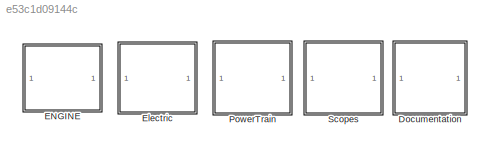
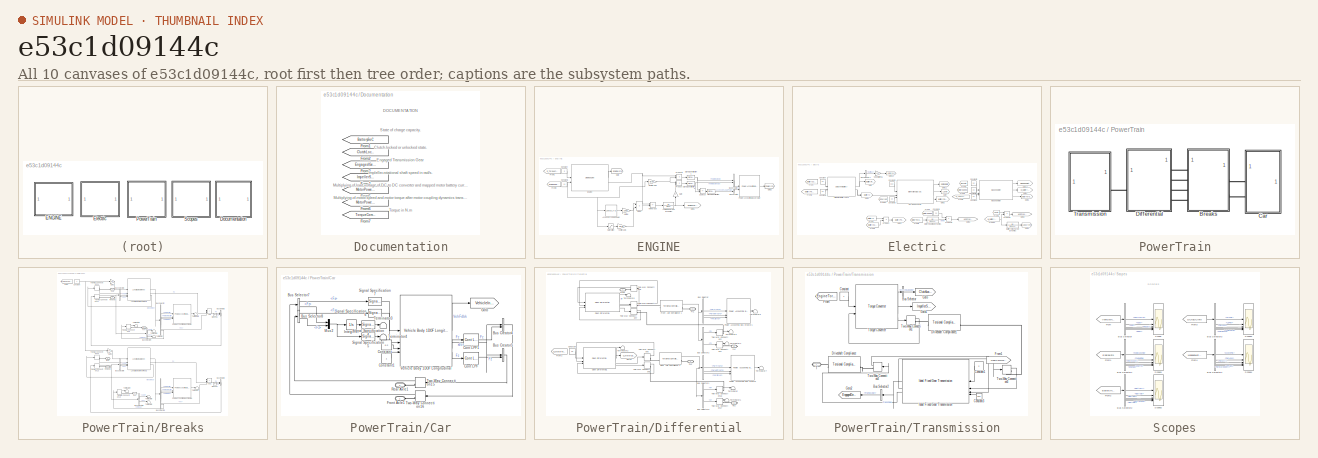
[diagram: thumbnail index - all 10 canvases of the model, root first then tree order]
MODEL slx_e53c1d09144c
KIND model
CONFIG AbsTol = auto
CONFIG EnableMultiTasking = off
CONFIG FixedStep = auto
CONFIG MaxStep = auto
CONFIG MinStep = auto
CONFIG RelTol = 1e-3
CONFIG SampleTimeConstraint = Unconstrained
CONFIG SolverName = VariableStepAuto
CONFIG StartTime = 0.0
CONFIG StopTime = 10.0
WORKSPACE source: mxarray member
WORKSPACE Aeff: Simulink.Parameter (value not decoded)
WORKSPACE Af: Simulink.Parameter (value not decoded)
WORKSPACE BattCapInit: Simulink.Parameter (value not decoded)
WORKSPACE BattChargeMax: Simulink.Parameter (value not decoded)
WORKSPACE BattTempBp: Simulink.Parameter (value not decoded)
WORKSPACE Bx: Simulink.Parameter (value not decoded)
WORKSPACE CapLUTBp: Simulink.Parameter (value not decoded)
WORKSPACE CapSOCBp: Simulink.Parameter (value not decoded)
WORKSPACE CatLightOffTime: Simulink.Parameter (value not decoded)
WORKSPACE Cd: Simulink.Parameter (value not decoded)
WORKSPACE Cl: Simulink.Parameter (value not decoded)
WORKSPACE Cpm: Simulink.Parameter (value not decoded)
WORKSPACE Cps: Simulink.Parameter (value not decoded)
WORKSPACE CrankSpeed: Simulink.Parameter (value not decoded)
WORKSPACE Cx: Simulink.Parameter (value not decoded)
WORKSPACE Dx: Simulink.Parameter (value not decoded)
WORKSPACE Em: Simulink.Parameter (value not decoded)
WORKSPACE EngRevLim: Simulink.Parameter (value not decoded)
WORKSPACE EngStopStartEnable: Simulink.Parameter (value not decoded)
WORKSPACE EngStopTime: Simulink.Parameter (value not decoded)
WORKSPACE Ex: Simulink.Parameter (value not decoded)
WORKSPACE FZMAX: Simulink.Parameter (value not decoded)
WORKSPACE FZMIN: Simulink.Parameter (value not decoded)
WORKSPACE Fc: Simulink.Parameter (value not decoded)
WORKSPACE FsbF: Simulink.Parameter (value not decoded)
WORKSPACE FsbR: Simulink.Parameter (value not decoded)
WORKSPACE FskF: Simulink.Parameter (value not decoded)
WORKSPACE FskR: Simulink.Parameter (value not decoded)
WORKSPACE G: Simulink.Parameter (value not decoded)
WORKSPACE G_o: Simulink.Parameter (value not decoded)
WORKSPACE Iyy: Simulink.Parameter (value not decoded)
WORKSPACE Iyy_Whl: Simulink.Parameter (value not decoded)
WORKSPACE J: Simulink.Parameter (value not decoded)
WORKSPACE J1: Simulink.Parameter (value not decoded)
WORKSPACE J2: Simulink.Parameter (value not decoded)
WORKSPACE Jd: Simulink.Parameter (value not decoded)
WORKSPACE Ji: Simulink.Parameter (value not decoded)
WORKSPACE Jin: Simulink.Parameter (value not decoded)
WORKSPACE Jin_Cltch: Simulink.Parameter (value not decoded)
WORKSPACE Jin_Cltch2: Simulink.Parameter (value not decoded)
WORKSPACE Jout: Simulink.Parameter (value not decoded)
WORKSPACE Jout_Cltch: Simulink.Parameter (value not decoded)
WORKSPACE Jout_Cltch2: Simulink.Parameter (value not decoded)
WORKSPACE Jt: Simulink.Parameter (value not decoded)
WORKSPACE Jw1: Simulink.Parameter (value not decoded)
WORKSPACE Jw2: Simulink.Parameter (value not decoded)
WORKSPACE K_c: Simulink.Parameter (value not decoded)
WORKSPACE Lrel: Simulink.Parameter (value not decoded)
WORKSPACE Mass: Simulink.Parameter (value not decoded)
WORKSPACE N: Simulink.Parameter (value not decoded)
WORKSPACE NCyl: Simulink.Parameter (value not decoded)
WORKSPACE NF: Simulink.Parameter (value not decoded)
WORKSPACE NR: Simulink.Parameter (value not decoded)
WORKSPACE N_P4: Simulink.Parameter (value not decoded)
WORKSPACE N_idle: Simulink.Parameter (value not decoded)
WORKSPACE Ndiff: Simulink.Parameter (value not decoded)
WORKSPACE Ndiff_P4: Simulink.Parameter (value not decoded)
WORKSPACE Ndisk: Simulink.Parameter (value not decoded)
WORKSPACE Ndisks: Simulink.Parameter (value not decoded)
WORKSPACE Np: Simulink.Parameter (value not decoded)
WORKSPACE Ns: Simulink.Parameter (value not decoded)
WORKSPACE Pabs: Simulink.Parameter (value not decoded)
WORKSPACE Plimit: Simulink.Parameter (value not decoded)
WORKSPACE Press: Simulink.Parameter (value not decoded)
WORKSPACE Pstd: Simulink.Parameter (value not decoded)
WORKSPACE RInt: Simulink.Parameter (value not decoded)
WORKSPACE Rair: Simulink.Parameter (value not decoded)
WORKSPACE Re: Simulink.Parameter (value not decoded)
WORKSPACE Reff: Simulink.Parameter (value not decoded)
WORKSPACE Reff_LSD: Simulink.Parameter (value not decoded)
WORKSPACE Rm: Simulink.Parameter (value not decoded)
WORKSPACE Sinj: Simulink.Parameter (value not decoded)
WORKSPACE T: Simulink.Parameter (value not decoded)
WORKSPACE T_eff_bp: Simulink.Parameter (value not decoded)
WORKSPACE T_t: Simulink.Parameter (value not decoded)
WORKSPACE Tc: Simulink.Parameter (value not decoded)
WORKSPACE Temp_bpts: Simulink.Parameter (value not decoded)
WORKSPACE Trq_bpts: Simulink.Parameter (value not decoded)
WORKSPACE Ts: Simulink.Parameter (value not decoded)
WORKSPACE Tstd: Simulink.Parameter (value not decoded)
WORKSPACE UNLOADED_RADIUS: Simulink.Parameter (value not decoded)
WORKSPACE VXLOW: Simulink.Parameter (value not decoded)
WORKSPACE Vd: Simulink.Parameter (value not decoded)
WORKSPACE Vinit: Simulink.Parameter (value not decoded)
WORKSPACE aMy: Simulink.Parameter (value not decoded)
WORKSPACE a_CG: Simulink.Parameter (value not decoded)
WORKSPACE afr_stoich: Simulink.Parameter (value not decoded)
WORKSPACE alphaMy: Simulink.Parameter (value not decoded)
WORKSPACE b: Simulink.Parameter (value not decoded)
WORKSPACE b1: Simulink.Parameter (value not decoded)
WORKSPACE b1_g: Simulink.Parameter (value not decoded)
WORKSPACE b2: Simulink.Parameter (value not decoded)
WORKSPACE b2_g: Simulink.Parameter (value not decoded)
WORKSPACE bMy: Simulink.Parameter (value not decoded)
WORKSPACE b_CG: Simulink.Parameter (value not decoded)
WORKSPACE b_J: Simulink.Parameter (value not decoded)
WORKSPACE bd: Simulink.Parameter (value not decoded)
WORKSPACE betaMy: Simulink.Parameter (value not decoded)
WORKSPACE bi: Simulink.Parameter (value not decoded)
WORKSPACE bin: Simulink.Parameter (value not decoded)
WORKSPACE bin_Cltch: Simulink.Parameter (value not decoded)
WORKSPACE bout: Simulink.Parameter (value not decoded)
WORKSPACE bout_Cltch: Simulink.Parameter (value not decoded)
WORKSPACE br: Simulink.Parameter (value not decoded)
WORKSPACE bt: Simulink.Parameter (value not decoded)
WORKSPACE bw1: Simulink.Parameter (value not decoded)
WORKSPACE bw2: Simulink.Parameter (value not decoded)
WORKSPACE cMy: Simulink.Parameter (value not decoded)
WORKSPACE calEngVar: object (value not decoded)
WORKSPACE disk_abore: Simulink.Parameter (value not decoded)
WORKSPACE domega_o: Simulink.Parameter (value not decoded)
WORKSPACE dw: Simulink.Parameter (value not decoded)
WORKSPACE dzdotsF: Simulink.Parameter (value not decoded)
WORKSPACE dzdotsR: Simulink.Parameter (value not decoded)
WORKSPACE dzsF: Simulink.Parameter (value not decoded)
WORKSPACE dzsR: Simulink.Parameter (value not decoded)
WORKSPACE eff: Simulink.Parameter (value not decoded)
WORKSPACE efficiency_table: Simulink.Parameter (value not decoded)
WORKSPACE eta: Simulink.Parameter (value not decoded)
WORKSPACE eta_diff: Simulink.Parameter (value not decoded)
WORKSPACE eta_tbl: Simulink.Parameter (value not decoded)
WORKSPACE f_cp_ld_bpt: Simulink.Parameter (value not decoded)
WORKSPACE f_cp_n_bpt: Simulink.Parameter (value not decoded)
WORKSPACE f_del_sa_bpt: Simulink.Parameter (value not decoded)
WORKSPACE f_ecp: Simulink.Parameter (value not decoded)
WORKSPACE f_egr_areapct_cmd: Simulink.Parameter (value not decoded)
WORKSPACE f_egr_areapct_nrmlzdflow_bpt: Simulink.Parameter (value not decoded)
WORKSPACE f_egr_areapct_pr_bpt: Simulink.Parameter (value not decoded)
WORKSPACE f_egr_max_stdflow: Simulink.Parameter (value not decoded)
WORKSPACE f_egr_stdflow: Simulink.Parameter (value not decoded)
WORKSPACE f_egr_stdflow_egrap_bpt: Simulink.Parameter (value not decoded)
WORKSPACE f_egr_stdflow_pr_bpt: Simulink.Parameter (value not decoded)
WORKSPACE f_egrpct_cmd: Simulink.Parameter (value not decoded)
WORKSPACE f_egrpct_ld_bpt: Simulink.Parameter (value not decoded)
WORKSPACE f_egrpct_n_bpt: Simulink.Parameter (value not decoded)
WORKSPACE f_fric_temp_bpt: Simulink.Parameter (value not decoded)
WORKSPACE f_fric_temp_mod: Simulink.Parameter (value not decoded)
WORKSPACE f_icp: Simulink.Parameter (value not decoded)
WORKSPACE f_intksys_stdflow_bpt: Simulink.Parameter (value not decoded)
WORKSPACE f_intksys_stdflow_pr: Simulink.Parameter (value not decoded)
WORKSPACE f_lamcmd: Simulink.Parameter (value not decoded)
WORKSPACE f_lamcmd_ld_bpt: Simulink.Parameter (value not decoded)
WORKSPACE f_lamcmd_n_bpt: Simulink.Parameter (value not decoded)
WORKSPACE f_lcmd: Simulink.Parameter (value not decoded)
WORKSPACE f_lcmd_n_bpt: Simulink.Parameter (value not decoded)
WORKSPACE f_lcmd_tq_bpt: Simulink.Parameter (value not decoded)
WORKSPACE f_m_lam: Simulink.Parameter (value not decoded)
WORKSPACE f_m_lam_bpt: Simulink.Parameter (value not decoded)
WORKSPACE f_m_sa: Simulink.Parameter (value not decoded)
WORKSPACE f_mdot_air_corr: Simulink.Parameter (value not decoded)
WORKSPACE f_mdot_air_corr_ld_bpt: Simulink.Parameter (value not decoded)
WORKSPACE f_mdot_air_n_bpt: Simulink.Parameter (value not decoded)
WORKSPACE f_mdot_intk: Simulink.Parameter (value not decoded)
WORKSPACE f_mdot_intk_ecp_bpt: Simulink.Parameter (value not decoded)
WORKSPACE f_mdot_trpd_bpt: Simulink.Parameter (value not decoded)
WORKSPACE f_nv: Simulink.Parameter (value not decoded)
WORKSPACE f_nv_n_bpt: Simulink.Parameter (value not decoded)
WORKSPACE f_nv_prs_bpt: Simulink.Parameter (value not decoded)
WORKSPACE f_sa: Simulink.Parameter (value not decoded)
WORKSPACE f_sa_ld_bpt: Simulink.Parameter (value not decoded)
WORKSPACE f_sa_n_bpt: Simulink.Parameter (value not decoded)
WORKSPACE f_sa_opt: Simulink.Parameter (value not decoded)
WORKSPACE f_startup_ect_bpt: Simulink.Parameter (value not decoded)
WORKSPACE f_startup_lambda_delta: Simulink.Parameter (value not decoded)
WORKSPACE f_startup_lambda_delta_timecnst: Simulink.Parameter (value not decoded)
WORKSPACE f_t_exh: Simulink.Parameter (value not decoded)
WORKSPACE f_t_exh_l_bpt: Simulink.Parameter (value not decoded)
WORKSPACE f_t_exh_n_bpt: Simulink.Parameter (value not decoded)
WORKSPACE f_tap: Simulink.Parameter (value not decoded)
WORKSPACE f_tap_ld_bpt: Simulink.Parameter (value not decoded)
WORKSPACE f_tap_n_bpt: Simulink.Parameter (value not decoded)
WORKSPACE f_tm_corr: Simulink.Parameter (value not decoded)
WORKSPACE f_tm_corr_n_bpt: Simulink.Parameter (value not decoded)
WORKSPACE f_tm_corr_nd_bpt: Simulink.Parameter (value not decoded)
WORKSPACE f_tpp: Simulink.Parameter (value not decoded)
WORKSPACE f_tpp_tap_bpt: Simulink.Parameter (value not decoded)
WORKSPACE f_tq_fric: Simulink.Parameter (value not decoded)
WORKSPACE f_tq_inr: Simulink.Parameter (value not decoded)
WORKSPACE f_tq_inr_l_bpt: Simulink.Parameter (value not decoded)
WORKSPACE f_tq_inr_n_bpt: Simulink.Parameter (value not decoded)
WORKSPACE f_tq_nl: Simulink.Parameter (value not decoded)
WORKSPACE f_tq_nl_l_bpt: Simulink.Parameter (value not decoded)
WORKSPACE f_tq_nl_n_bpt: Simulink.Parameter (value not decoded)
WORKSPACE f_tq_pump: Simulink.Parameter (value not decoded)
WORKSPACE f_vivc: Simulink.Parameter (value not decoded)
WORKSPACE f_vivc_icp_bpt: Simulink.Parameter (value not decoded)
WORKSPACE f_wap: Simulink.Parameter (value not decoded)
WORKSPACE f_wap_ld_bpt: Simulink.Parameter (value not decoded)
WORKSPACE f_wap_n_bpt: Simulink.Parameter (value not decoded)
WORKSPACE g: Simulink.Parameter (value not decoded)
WORKSPACE grEff: Simulink.Parameter (value not decoded)
WORKSPACE h: Simulink.Parameter (value not decoded)
WORKSPACE k: Simulink.Parameter (value not decoded)
WORKSPACE k1: Simulink.Parameter (value not decoded)
WORKSPACE k2: Simulink.Parameter (value not decoded)
WORKSPACE kappamax: Simulink.Parameter (value not decoded)
WORKSPACE lam_x: Simulink.Parameter (value not decoded)
WORKSPACE mu_kinetic: Simulink.Parameter (value not decoded)
WORKSPACE mu_static: Simulink.Parameter (value not decoded)
WORKSPACE muc: Simulink.Parameter (value not decoded)
WORKSPACE muk: Simulink.Parameter (value not decoded)
WORKSPACE mus: Simulink.Parameter (value not decoded)
WORKSPACE num_pads: Simulink.Parameter (value not decoded)
WORKSPACE omega1_c: Simulink.Parameter (value not decoded)
WORKSPACE omega2_c: Simulink.Parameter (value not decoded)
WORKSPACE omega_bpts: Simulink.Parameter (value not decoded)
WORKSPACE omega_c: Simulink.Parameter (value not decoded)
WORKSPACE omega_o: Simulink.Parameter (value not decoded)
WORKSPACE omega_o_J: Simulink.Parameter (value not decoded)
WORKSPACE omegai_o: Simulink.Parameter (value not decoded)
WORKSPACE omegain_o: Simulink.Parameter (value not decoded)
WORKSPACE omegal: Simulink.Parameter (value not decoded)
WORKSPACE omegao: Simulink.Parameter (value not decoded)
WORKSPACE omegaout_o: Simulink.Parameter (value not decoded)
WORKSPACE omegat_o: Simulink.Parameter (value not decoded)
WORKSPACE omegau: Simulink.Parameter (value not decoded)
WORKSPACE omegaw1o: Simulink.Parameter (value not decoded)
WORKSPACE omegaw2o: Simulink.Parameter (value not decoded)
WORKSPACE phi: Simulink.Parameter (value not decoded)
WORKSPACE philu: Simulink.Parameter (value not decoded)
WORKSPACE power_max: Simulink.Parameter (value not decoded)
WORKSPACE press: Simulink.Parameter (value not decoded)
WORKSPACE psi: Simulink.Parameter (value not decoded)
WORKSPACE q_o: Simulink.Parameter (value not decoded)
WORKSPACE tauC: Simulink.Parameter (value not decoded)
WORKSPACE tauC_1: Simulink.Parameter (value not decoded)
WORKSPACE tauC_LSD: Simulink.Parameter (value not decoded)
WORKSPACE tauTC: Simulink.Parameter (value not decoded)
WORKSPACE tau_egr: Simulink.Parameter (value not decoded)
WORKSPACE tau_s: Simulink.Parameter (value not decoded)
WORKSPACE tc: Simulink.Parameter (value not decoded)
WORKSPACE theta_o: Simulink.Parameter (value not decoded)
WORKSPACE theta_o_Veh: Simulink.Parameter (value not decoded)
WORKSPACE torque_max: Simulink.Parameter (value not decoded)
WORKSPACE ts: Simulink.Parameter (value not decoded)
WORKSPACE w1_o: Simulink.Parameter (value not decoded)
WORKSPACE w_eff_bp: Simulink.Parameter (value not decoded)
WORKSPACE wc: Simulink.Parameter (value not decoded)
WORKSPACE win_o: Simulink.Parameter (value not decoded)
WORKSPACE wout_o: Simulink.Parameter (value not decoded)
WORKSPACE x_o: Simulink.Parameter (value not decoded)
WORKSPACE xdot_o: Simulink.Parameter (value not decoded)
WORKSPACE z_o: Simulink.Parameter (value not decoded)
WORKSPACE zdot_o: Simulink.Parameter (value not decoded)
WORKSPACE zeta: Simulink.Parameter (value not decoded)
BLOCK [SubSystem] Documentation
BLOCK [From] Documentation/From1
  GotoTag = BatterySoC
  TagVisibility = global
BLOCK [From] Documentation/From2
  GotoTag = ClutchLocked
  TagVisibility = global
BLOCK [From] Documentation/From3
  GotoTag = EngagedGear
  TagVisibility = global
BLOCK [From] Documentation/From4
  GotoTag = ImpellerSpeed
  TagVisibility = global
BLOCK [From] Documentation/From5
  GotoTag = MotorPowerElectrical
  TagVisibility = global
BLOCK [From] Documentation/From6
  GotoTag = MotorPowerMechanical
  TagVisibility = global
BLOCK [From] Documentation/From7
  GotoTag = TorqueCommand
  TagVisibility = global
BLOCK [SubSystem] ENGINE
BLOCK [Lookup_n-D] ENGINE/Accessory Load Power
  BreakpointsForDimension1 = [300 750]
  ExtrapMethod = Clip
  InputPortMap = u0
  InternalRulePriority = Speed
  LookupTableObject = ''
  NumberOfTableDimensions = 1
  RndMeth = Simplest
  Table = [0 0]
BLOCK [BusCreator] ENGINE/Bus Creator
  DisplayOption = bar
  InheritFromInputs = on
  Inputs = 1
BLOCK [BusCreator] ENGINE/Bus Creator1
  DisplayOption = bar
  InheritFromInputs = on
  Inputs = 2
BLOCK [Constant] ENGINE/Constant
  Value = 5
BLOCK [Constant] ENGINE/Constant1
  Value = 10
BLOCK [Product] ENGINE/Divide
  Inputs = */
BLOCK [Reference] ENGINE/Engine  REF=autolibsharedmappedengines/Simple Engine
  LibrarySourceBlock = autolibenginesystems/Simple Engine
  SourceBlock = autolibsharedmappedengines/Simple Engine
  SourceType = Simple Engine
BLOCK [From] ENGINE/From1
  Commented = on
  GotoTag = E_TorqueCommand
BLOCK [From] ENGINE/From2
  Commented = on
  GotoTag = EngineSpeed
BLOCK [Gain] ENGINE/Gain
  Gain = -1
  NameLocation = right
BLOCK [Goto] ENGINE/Goto
  GotoTag = EngineInfo
  TagVisibility = global
BLOCK [Goto] ENGINE/Goto1
  GotoTag = EngineTorqueOut
  TagVisibility = global
BLOCK [Goto] ENGINE/Goto2
  GotoTag = PowerInfo
  TagVisibility = global
BLOCK [Gain] ENGINE/Kw to w
  Gain = 1000
BLOCK [TransferFcn] ENGINE/Lumped Torque Dynamics
  Denominator = [0.2 1]
BLOCK [Sum] ENGINE/Net Torque
  IconShape = rectangular
  Inputs = +-
BLOCK [Reference] ENGINE/Power Accounting Bus Creator  REF=autolibpowerinfoutils/Power Accounting Bus Creator
  SourceBlock = autolibpowerinfoutils/Power Accounting Bus Creator
  SourceType = Power Accounting Bus Creator
BLOCK [Product] ENGINE/Product
BLOCK [Product] ENGINE/Product1
BLOCK [Gain] ENGINE/RPM to rad//s
  Gain = pi/30
BLOCK [Saturate] ENGINE/Saturation
  LowerLimit = 300
  UpperLimit = Inf
  ZeroCross = off
BLOCK [SignalSpecification] ENGINE/Signal Specification
  Unit = W
BLOCK [SignalSpecification] ENGINE/Signal Specification1
  Unit = W
BLOCK [SignalSpecification] ENGINE/Signal Specification2
  Unit = W
BLOCK [Sum] ENGINE/Subtract
  IconShape = rectangular
  Inputs = --
BLOCK [Gain] ENGINE/rpm to rad//s
  Gain = pi/30
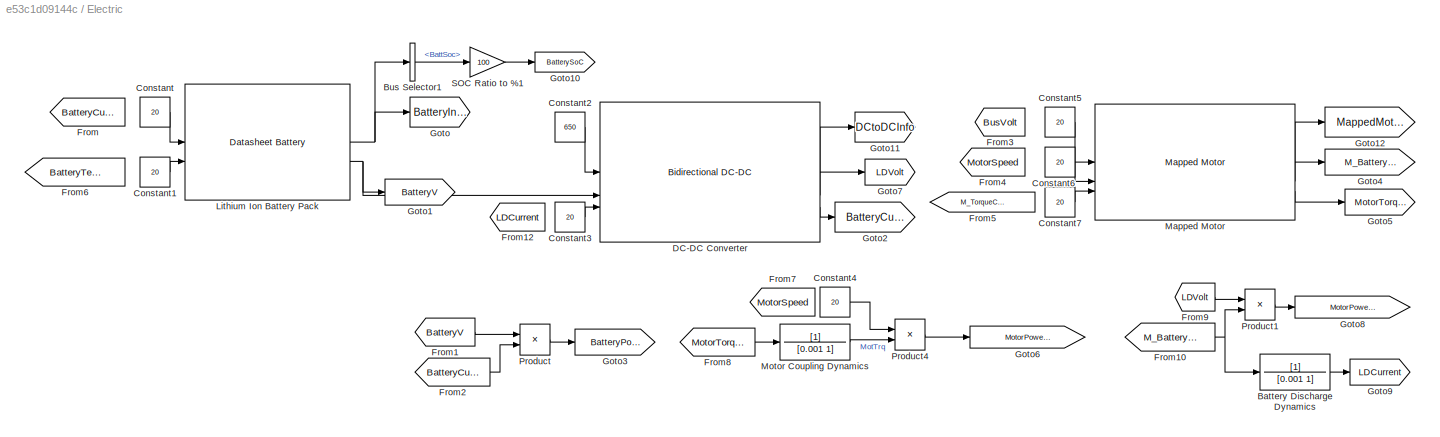
BLOCK [SubSystem] Electric
BLOCK [TransferFcn] Electric/Battery Discharge Dynamics
  Denominator = [0.001 1]
BLOCK [BusSelector] Electric/Bus Selector1
  OutputSignals = BattSoc
BLOCK [Constant] Electric/Constant
  Value = 20
BLOCK [Constant] Electric/Constant1
  Value = 20
BLOCK [Constant] Electric/Constant2
  Value = 650
BLOCK [Constant] Electric/Constant3
  Value = 20
BLOCK [Constant] Electric/Constant4
  Value = 20
BLOCK [Constant] Electric/Constant5
  Value = 20
BLOCK [Constant] Electric/Constant6
  Value = 20
BLOCK [Constant] Electric/Constant7
  Value = 20
BLOCK [Reference] Electric/DC-DC Converter  REF=autolibdcdc/Bidirectional DC-DC
  SourceBlock = autolibdcdc/Bidirectional DC-DC
  SourceType = DcToDcConverter
BLOCK [From] Electric/From
  Commented = on
  GotoTag = BatteryCurrent
  TagVisibility = global
BLOCK [From] Electric/From1
  GotoTag = BatteryV
BLOCK [From] Electric/From10
  GotoTag = M_BatteryCurrent
  TagVisibility = global
BLOCK [From] Electric/From12
  Commented = on
  GotoTag = LDCurrent
  TagVisibility = global
BLOCK [From] Electric/From2
  GotoTag = BatteryCurrent
  TagVisibility = global
BLOCK [From] Electric/From3
  Commented = on
  GotoTag = BusVolt
BLOCK [From] Electric/From4
  Commented = on
  GotoTag = MotorSpeed
BLOCK [From] Electric/From5
  Commented = on
  GotoTag = M_TorqueCommand
BLOCK [From] Electric/From6
  Commented = on
  GotoTag = BatteryTemperature
BLOCK [From] Electric/From7
  Commented = on
  GotoTag = MotorSpeed
BLOCK [From] Electric/From8
  GotoTag = MotorTorque
  TagVisibility = global
BLOCK [From] Electric/From9
  GotoTag = LDVolt
  TagVisibility = global
BLOCK [Goto] Electric/Goto
  GotoTag = BatteryInfo
  TagVisibility = global
BLOCK [Goto] Electric/Goto1
  GotoTag = BatteryV
BLOCK [Goto] Electric/Goto10
  GotoTag = BatterySoC
  TagVisibility = global
BLOCK [Goto] Electric/Goto11
  GotoTag = DCtoDCInfo
  TagVisibility = global
BLOCK [Goto] Electric/Goto12
  GotoTag = MappedMotorInfo
  TagVisibility = global
BLOCK [Goto] Electric/Goto2
  GotoTag = BatteryCurrent
  TagVisibility = global
BLOCK [Goto] Electric/Goto3
  GotoTag = BatteryPower
  TagVisibility = global
BLOCK [Goto] Electric/Goto4
  GotoTag = M_BatteryCurrent
  TagVisibility = global
BLOCK [Goto] Electric/Goto5
  GotoTag = MotorTorque
  TagVisibility = global
BLOCK [Goto] Electric/Goto6
  GotoTag = MotorPowerMechanical
  TagVisibility = global
BLOCK [Goto] Electric/Goto7
  GotoTag = LDVolt
  TagVisibility = global
BLOCK [Goto] Electric/Goto8
  GotoTag = MotorPowerElectrical
  TagVisibility = global
BLOCK [Goto] Electric/Goto9
  GotoTag = LDCurrent
  TagVisibility = global
BLOCK [Reference] Electric/Lithium Ion Battery Pack  REF=autolibdatasheetbattery/Datasheet Battery
  SourceBlock = autolibdatasheetbattery/Datasheet Battery
  SourceType = Datasheet Battery
BLOCK [Reference] Electric/Mapped Motor  REF=autolibmappedmotor/Mapped Motor
  SourceBlock = autolibmappedmotor/Mapped Motor
  SourceType = MappedMotor
BLOCK [TransferFcn] Electric/Motor Coupling Dynamics
  Denominator = [0.001 1]
BLOCK [Product] Electric/Product
BLOCK [Product] Electric/Product1
BLOCK [Product] Electric/Product4
BLOCK [Gain] Electric/SOC Ratio to %1
  Gain = 100
BLOCK [SubSystem] PowerTrain
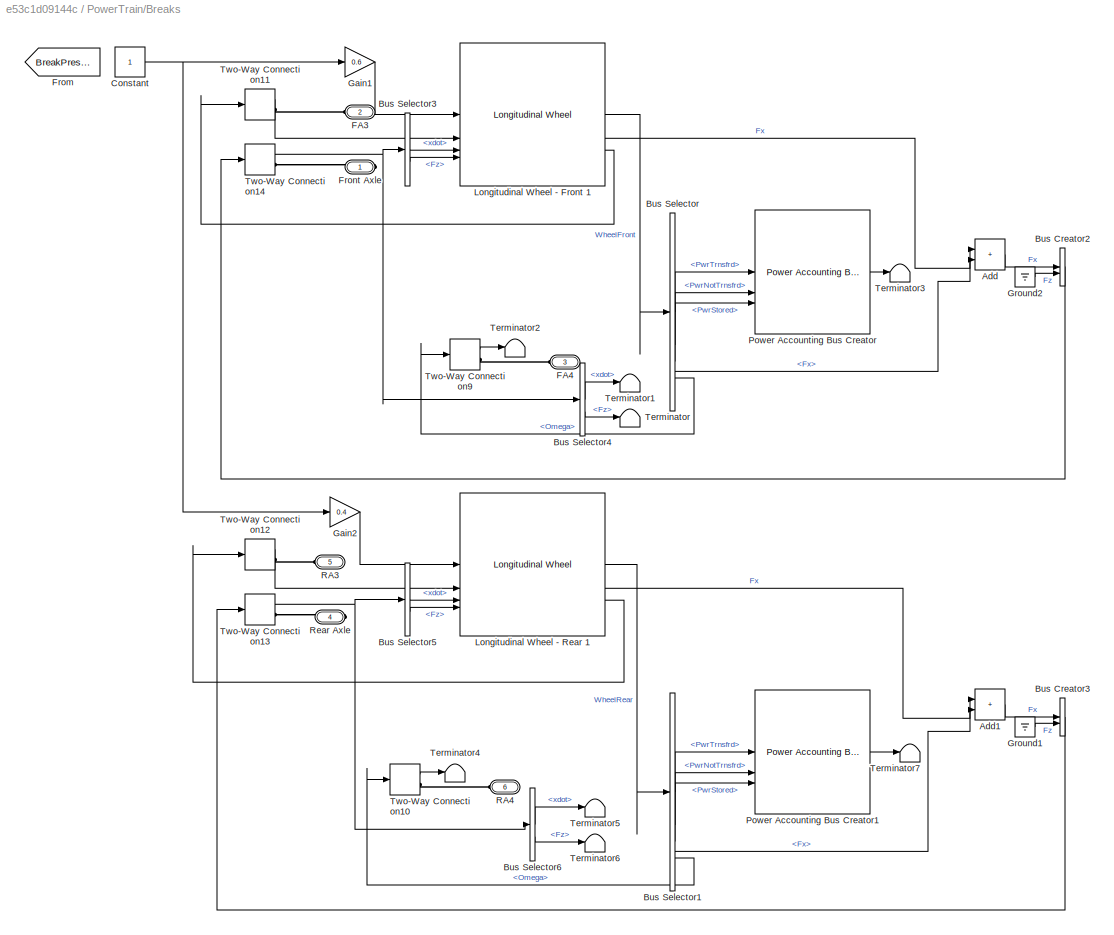
BLOCK [SubSystem] PowerTrain/Breaks
BLOCK [Sum] PowerTrain/Breaks/Add
  IconShape = rectangular
BLOCK [Sum] PowerTrain/Breaks/Add1
  IconShape = rectangular
BLOCK [BusCreator] PowerTrain/Breaks/Bus Creator2
  DisplayOption = bar
  InheritFromInputs = on
  Inputs = 2
BLOCK [BusCreator] PowerTrain/Breaks/Bus Creator3
  DisplayOption = bar
  InheritFromInputs = on
  Inputs = 2
BLOCK [BusSelector] PowerTrain/Breaks/Bus Selector
  OutputSignals = PwrInfo.PwrTrnsfrd,PwrInfo.PwrNotTrnsfrd,PwrInfo.PwrStored,Fx,Omega
BLOCK [BusSelector] PowerTrain/Breaks/Bus Selector1
  OutputSignals = PwrInfo.PwrTrnsfrd,PwrInfo.PwrNotTrnsfrd,PwrInfo.PwrStored,Fx,Omega
BLOCK [BusSelector] PowerTrain/Breaks/Bus Selector3
  OutputSignals = xdot,Fz
BLOCK [BusSelector] PowerTrain/Breaks/Bus Selector4
  OutputSignals = xdot,Fz
BLOCK [BusSelector] PowerTrain/Breaks/Bus Selector5
  OutputSignals = xdot,Fz
BLOCK [BusSelector] PowerTrain/Breaks/Bus Selector6
  OutputSignals = xdot,Fz
BLOCK [Constant] PowerTrain/Breaks/Constant
BLOCK [PMIOPort] PowerTrain/Breaks/FA3
  Port = 2
  Side = Left
BLOCK [PMIOPort] PowerTrain/Breaks/FA4
  Port = 3
  Side = Left
BLOCK [From] PowerTrain/Breaks/From
  Commented = on
  GotoTag = BreakPressure
BLOCK [PMIOPort] PowerTrain/Breaks/Front Axle
  Side = Right
BLOCK [Gain] PowerTrain/Breaks/Gain1
  Gain = 0.6
BLOCK [Gain] PowerTrain/Breaks/Gain2
  Gain = 0.4
BLOCK [Ground] PowerTrain/Breaks/Ground1
BLOCK [Ground] PowerTrain/Breaks/Ground2
BLOCK [Reference] PowerTrain/Breaks/Longitudinal Wheel - Front 1  REF=autolibshared/Longitudinal Wheel
  AttributesFormatString = Brake Type: %<BrakeType>
  LibrarySourceBlock = autolibwheelslong/Longitudinal Wheel
  SourceBlock = autolibshared/Longitudinal Wheel
  SourceType = Longitudinal Wheel
BLOCK [Reference] PowerTrain/Breaks/Longitudinal Wheel - Rear 1  REF=autolibshared/Longitudinal Wheel
  AttributesFormatString = Brake Type: %<BrakeType>
  LibrarySourceBlock = autolibwheelslong/Longitudinal Wheel
  SourceBlock = autolibshared/Longitudinal Wheel
  SourceType = Longitudinal Wheel
BLOCK [Reference] PowerTrain/Breaks/Power Accounting Bus Creator  REF=autolibpowerinfoutils/Power Accounting Bus Creator
  SourceBlock = autolibpowerinfoutils/Power Accounting Bus Creator
  SourceType = Power Accounting Bus Creator
BLOCK [Reference] PowerTrain/Breaks/Power Accounting Bus Creator1  REF=autolibpowerinfoutils/Power Accounting Bus Creator
  SourceBlock = autolibpowerinfoutils/Power Accounting Bus Creator
  SourceType = Power Accounting Bus Creator
BLOCK [PMIOPort] PowerTrain/Breaks/RA3
  Port = 5
  Side = Left
BLOCK [PMIOPort] PowerTrain/Breaks/RA4
  Port = 6
  Side = Left
BLOCK [PMIOPort] PowerTrain/Breaks/Rear Axle
  Port = 4
  Side = Right
BLOCK [Terminator] PowerTrain/Breaks/Terminator
BLOCK [Terminator] PowerTrain/Breaks/Terminator1
BLOCK [Terminator] PowerTrain/Breaks/Terminator2
BLOCK [Terminator] PowerTrain/Breaks/Terminator3
BLOCK [Terminator] PowerTrain/Breaks/Terminator4
BLOCK [Terminator] PowerTrain/Breaks/Terminator5
BLOCK [Terminator] PowerTrain/Breaks/Terminator6
BLOCK [Terminator] PowerTrain/Breaks/Terminator7
BLOCK [TwoWayConnection] PowerTrain/Breaks/Two-Way Connection10
BLOCK [TwoWayConnection] PowerTrain/Breaks/Two-Way Connection11
BLOCK [TwoWayConnection] PowerTrain/Breaks/Two-Way Connection12
BLOCK [TwoWayConnection] PowerTrain/Breaks/Two-Way Connection13
BLOCK [TwoWayConnection] PowerTrain/Breaks/Two-Way Connection14
BLOCK [TwoWayConnection] PowerTrain/Breaks/Two-Way Connection9
BLOCK [SubSystem] PowerTrain/Car
BLOCK [BusCreator] PowerTrain/Car/Bus Creator4
  DisplayOption = bar
  InheritFromInputs = on
  Inputs = 2
BLOCK [BusCreator] PowerTrain/Car/Bus Creator5
  DisplayOption = bar
  InheritFromInputs = on
  Inputs = 2
BLOCK [BusSelector] PowerTrain/Car/Bus Selector7
  OutputSignals = Fx,Fz
BLOCK [BusSelector] PowerTrain/Car/Bus Selector8
  OutputSignals = Fx,Fz
BLOCK [Constant] PowerTrain/Car/Constant
  Value = 0.2
BLOCK [Constant] PowerTrain/Car/Constant1
BLOCK [Reference] PowerTrain/Car/Cont LPF  REF=autolibutils/Cont LPF
  SourceBlock = autolibutils/Cont LPF
BLOCK [Reference] PowerTrain/Car/Cont LPF1  REF=autolibutils/Cont LPF
  SourceBlock = autolibutils/Cont LPF
BLOCK [PMIOPort] PowerTrain/Car/Front Axle1
  Side = Left
BLOCK [Goto] PowerTrain/Car/Goto
  GotoTag = VehicleInfo
  TagVisibility = global
BLOCK [Integrator] PowerTrain/Car/Integrator
BLOCK [Mux] PowerTrain/Car/Mux2
  DisplayOption = bar
  Inputs = 2
BLOCK [PMIOPort] PowerTrain/Car/Rear Axle1
  Port = 2
  Side = Left
BLOCK [SignalSpecification] PowerTrain/Car/Signal Specification4
  Unit = m
BLOCK [SignalSpecification] PowerTrain/Car/Signal Specification5
  Unit = m/s
BLOCK [SignalSpecification] PowerTrain/Car/Signal Specification6
  Unit = N
BLOCK [SignalSpecification] PowerTrain/Car/Signal Specification7
  Unit = N
BLOCK [Terminator] PowerTrain/Car/Terminator3
BLOCK [Terminator] PowerTrain/Car/Terminator4
BLOCK [TwoWayConnection] PowerTrain/Car/Two-Way Connection15
BLOCK [TwoWayConnection] PowerTrain/Car/Two-Way Connection16
BLOCK [Reference] PowerTrain/Car/Vehicle Body 1DOF Longitudinal  REF=autolibshared/Vehicle Body 1DOF Longitudinal
  LibrarySourceBlock = autolibvehdynlong/Vehicle Body 1DOF Longitudinal
  SourceBlock = autolibshared/Vehicle Body 1DOF Longitudinal
  SourceType = Vehicle Body 1DOF Longitudinal
BLOCK [SubSystem] PowerTrain/Differential
BLOCK [BusSelector] PowerTrain/Differential/Bus Selector
  OutputSignals = PwrInfo.PwrTrnsfrd,PwrInfo.PwrNotTrnsfrd,PwrInfo.PwrStored
BLOCK [BusSelector] PowerTrain/Differential/Bus Selector1
  OutputSignals = PwrInfo.PwrTrnsfrd,PwrInfo.PwrNotTrnsfrd,PwrInfo.PwrStored
BLOCK [BusSelector] PowerTrain/Differential/Bus Selector2
  OutputSignals = Trq.R,Trq.C
BLOCK [BusSelector] PowerTrain/Differential/Bus Selector9
  OutputSignals = Trq.R,Trq.C
BLOCK [Constant] PowerTrain/Differential/Constant
  Value = 20
BLOCK [PMIOPort] PowerTrain/Differential/FA1
  Port = 2
  Side = Right
BLOCK [PMIOPort] PowerTrain/Differential/FA2
  Port = 3
  Side = Right
BLOCK [From] PowerTrain/Differential/From2
  Commented = on
  GotoTag = D_MotorTorque
BLOCK [PMIOPort] PowerTrain/Differential/Front
  Side = Left
BLOCK [Reference] PowerTrain/Differential/Front Axle Compliance 1  REF=autolibsharedcoupling/Torsional Compliance
  LibrarySourceBlock = autolibcoupling/Torsional Compliance
  SourceBlock = autolibsharedcoupling/Torsional Compliance
  SourceType = Torsional Compliance
BLOCK [Goto] PowerTrain/Differential/Goto3
  GotoTag = D_MotorSpeed
  TagVisibility = global
BLOCK [Reference] PowerTrain/Differential/Open Differential  REF=autolibshareddiff/Open Differential
  LibrarySourceBlock = autolibdiff/Open Differential
  SourceBlock = autolibshareddiff/Open Differential
  SourceType = Open Differential
BLOCK [Reference] PowerTrain/Differential/Open Differential1  REF=autolibshareddiff/Open Differential
  LibrarySourceBlock = autolibdiff/Open Differential
  SourceBlock = autolibshareddiff/Open Differential
  SourceType = Open Differential
BLOCK [Reference] PowerTrain/Differential/Power Accounting Bus Creator  REF=autolibpowerinfoutils/Power Accounting Bus Creator
  SourceBlock = autolibpowerinfoutils/Power Accounting Bus Creator
  SourceType = Power Accounting Bus Creator
BLOCK [Reference] PowerTrain/Differential/Power Accounting Bus Creator1  REF=autolibpowerinfoutils/Power Accounting Bus Creator
  SourceBlock = autolibpowerinfoutils/Power Accounting Bus Creator
  SourceType = Power Accounting Bus Creator
BLOCK [PMIOPort] PowerTrain/Differential/RA1
  Port = 4
  Side = Right
BLOCK [PMIOPort] PowerTrain/Differential/RA2
  Port = 5
  Side = Right
BLOCK [Reference] PowerTrain/Differential/Rear Axle Compliance 1  REF=autolibsharedcoupling/Torsional Compliance
  LibrarySourceBlock = autolibcoupling/Torsional Compliance
  SourceBlock = autolibsharedcoupling/Torsional Compliance
  SourceType = Torsional Compliance
BLOCK [Terminator] PowerTrain/Differential/Terminator
BLOCK [Terminator] PowerTrain/Differential/Terminator1
BLOCK [Terminator] PowerTrain/Differential/Terminator2
BLOCK [Terminator] PowerTrain/Differential/Terminator3
BLOCK [Terminator] PowerTrain/Differential/Terminator4
BLOCK [Terminator] PowerTrain/Differential/Terminator5
BLOCK [Terminator] PowerTrain/Differential/Terminator6
BLOCK [Terminator] PowerTrain/Differential/Terminator7
BLOCK [TwoWayConnection] PowerTrain/Differential/Two-Way Connection1
BLOCK [TwoWayConnection] PowerTrain/Differential/Two-Way Connection17
BLOCK [TwoWayConnection] PowerTrain/Differential/Two-Way Connection18
BLOCK [TwoWayConnection] PowerTrain/Differential/Two-Way Connection2
BLOCK [TwoWayConnection] PowerTrain/Differential/Two-Way Connection4
BLOCK [TwoWayConnection] PowerTrain/Differential/Two-Way Connection5
BLOCK [TwoWayConnection] PowerTrain/Differential/Two-Way Connection6
  NameLocation = top
BLOCK [TwoWayConnection] PowerTrain/Differential/Two-Way Connection7
BLOCK [TwoWayConnection] PowerTrain/Differential/Two-Way Connection8
BLOCK [SubSystem] PowerTrain/Transmission
BLOCK [BusSelector] PowerTrain/Transmission/Bus Selector
  OutputSignals = Cltch.CltchLocked
BLOCK [BusSelector] PowerTrain/Transmission/Bus Selector2
  NameLocation = top
  OutputSignals = Trans.TransGear
BLOCK [Constant] PowerTrain/Transmission/Constant
BLOCK [Constant] PowerTrain/Transmission/Constant1
  NameLocation = top
  Value = 2
BLOCK [Constant] PowerTrain/Transmission/Constant3
  NameLocation = top
  Value = 313
BLOCK [Reference] PowerTrain/Transmission/Driveshaft Compliance  REF=autolibsharedcoupling/Torsional Compliance
  LibrarySourceBlock = autolibcoupling/Torsional Compliance
  NameLocation = top
  SourceBlock = autolibsharedcoupling/Torsional Compliance
  SourceType = Torsional Compliance
BLOCK [Reference] PowerTrain/Transmission/Driveshaft Compliance1  REF=autolibsharedcoupling/Torsional Compliance
  LibrarySourceBlock = autolibcoupling/Torsional Compliance
  SourceBlock = autolibsharedcoupling/Torsional Compliance
  SourceType = Torsional Compliance
BLOCK [From] PowerTrain/Transmission/From
  Commented = on
  GotoTag = EngineTorque
BLOCK [From] PowerTrain/Transmission/From1
  Commented = on
  GotoTag = GearCommand
  NameLocation = top
BLOCK [Goto] PowerTrain/Transmission/Goto
  GotoTag = ClutchLocked
  TagVisibility = global
BLOCK [Goto] PowerTrain/Transmission/Goto1
  GotoTag = ImpellerSpeed
  TagVisibility = global
BLOCK [Goto] PowerTrain/Transmission/Goto2
  GotoTag = EngagedGear
  NameLocation = top
  TagVisibility = global
BLOCK [Reference] PowerTrain/Transmission/Ideal Fixed Gear Transmission  REF=autolibsharedtransfixedgear/Ideal Fixed Gear Transmission
  LibrarySourceBlock = autolibtrans/Ideal Fixed Gear Transmission
  NameLocation = top
  SourceBlock = autolibsharedtransfixedgear/Ideal Fixed Gear Transmission
  SourceType = Ideal Fixed Gear Transmission
BLOCK [PMIOPort] PowerTrain/Transmission/T
  NameLocation = top
  Side = Right
BLOCK [Reference] PowerTrain/Transmission/Torque Converter  REF=autolibtrqconv/Torque Converter
  AttributesFormatString = Lock-up type:  %<TCType>
  SourceBlock = autolibtrqconv/Torque Converter
  SourceType = Torque Converter
BLOCK [TwoWayConnection] PowerTrain/Transmission/Two-Way Connection1
BLOCK [TwoWayConnection] PowerTrain/Transmission/Two-Way Connection2
  NameLocation = top
BLOCK [TwoWayConnection] PowerTrain/Transmission/Two-Way Connection3
  NameLocation = top
BLOCK [SubSystem] Scopes
BLOCK [BusSelector] Scopes/Bus Selector
  OutputSignals = PwrInfo.PwrTrnsfrd,BdyFrm.RearAxl.Vel.xdot,BdyFrm.FrntAxl.Vel.xdot,BdyFrm.Pwr.PwrExt,BdyFrm.Forces.Body
BLOCK [BusSelector] Scopes/Bus Selector1
  OutputSignals = FuelMassFlw,FuelVolFlw,PwrInfo.PwrTrnsfrd.PwrCrkshft,EngTrq,EngSpd
BLOCK [BusSelector] Scopes/Bus Selector2
  OutputSignals = BattCurr,BattVolt,BattSoc,BattAmpHr,BattPwr
BLOCK [BusSelector] Scopes/Bus Selector3
  OutputSignals = SrcPwr,LdPwr,PwrLoss,LdVoltCmd,PwrInfo.PwrTrnsfrd.PwrBusLd
BLOCK [BusSelector] Scopes/Bus Selector4
  OutputSignals = MechPwr,PwrLoss,PwrInfo.PwrTrnsfrd.PwrMtr,PwrInfo.PwrTrnsfrd.PwrBus,PwrInfo.PwrStored.PwrStoredShft
BLOCK [From] Scopes/From
  GotoTag = VehicleInfo
  TagVisibility = global
BLOCK [From] Scopes/From1
  GotoTag = EngineInfo
  TagVisibility = global
BLOCK [From] Scopes/From2
  GotoTag = BatteryInfo
  TagVisibility = global
BLOCK [From] Scopes/From3
  GotoTag = DCtoDCInfo
  TagVisibility = global
BLOCK [From] Scopes/From4
  GotoTag = MappedMotorInfo
  TagVisibility = global
BLOCK [Scope] Scopes/Scope
  Floating = off
  NumInputPorts = 5
  ScopeSpecificationString = Simulink.scopes.TimeScopeBlockCfg('CurrentConfiguration', extmgr.ConfigurationSet(extmgr.Configuration('Core','General UI',true),extmgr.Configuration('Core','Source UI',true),extmgr.Configuration('Sources','WiredSimulink',true),extmgr.Configuration('Visuals','Time Domain',true,'SerializedDisplays',{struct('MinYLimReal','-3123.83985','MaxYLimReal','3257.47526','YLabelReal','','MinYLimMag','  0.0000...<+2163ch>
BLOCK [Scope] Scopes/Scope1
  Floating = off
  NumInputPorts = 5
  ScopeSpecificationString = Simulink.scopes.TimeScopeBlockCfg('CurrentConfiguration', extmgr.ConfigurationSet(extmgr.Configuration('Core','General UI',true),extmgr.Configuration('Core','Source UI',true),extmgr.Configuration('Sources','WiredSimulink',true,'DataLoggingVariableName','ScopeData1'),extmgr.Configuration('Visuals','Time Domain',true,'SerializedDisplays',{struct('MinYLimReal','-3123.83985','MaxYLimReal','3257.47526'...<+2202ch>
BLOCK [Scope] Scopes/Scope2
  Floating = off
  NumInputPorts = 5
  ScopeSpecificationString = Simulink.scopes.TimeScopeBlockCfg('CurrentConfiguration', extmgr.ConfigurationSet(extmgr.Configuration('Core','General UI',true),extmgr.Configuration('Core','Source UI',true),extmgr.Configuration('Sources','WiredSimulink',true,'DataLoggingVariableName','ScopeData2'),extmgr.Configuration('Visuals','Time Domain',true,'SerializedDisplays',{struct('MinYLimReal','-3123.83985','MaxYLimReal','3257.47526'...<+2202ch>
BLOCK [Scope] Scopes/Scope3
  Floating = off
  NumInputPorts = 5
  ScopeSpecificationString = Simulink.scopes.TimeScopeBlockCfg('CurrentConfiguration', extmgr.ConfigurationSet(extmgr.Configuration('Core','General UI',true),extmgr.Configuration('Core','Source UI',true),extmgr.Configuration('Sources','WiredSimulink',true,'DataLoggingVariableName','ScopeData3'),extmgr.Configuration('Visuals','Time Domain',true,'SerializedDisplays',{struct('MinYLimReal','-3123.83985','MaxYLimReal','3257.47526'...<+2202ch>
BLOCK [Scope] Scopes/Scope4
  Floating = off
  NumInputPorts = 5
  ScopeSpecificationString = Simulink.scopes.TimeScopeBlockCfg('CurrentConfiguration', extmgr.ConfigurationSet(extmgr.Configuration('Core','General UI',true),extmgr.Configuration('Core','Source UI',true),extmgr.Configuration('Sources','WiredSimulink',true,'DataLoggingVariableName','ScopeData4'),extmgr.Configuration('Visuals','Time Domain',true,'SerializedDisplays',{struct('MinYLimReal','-3123.83985','MaxYLimReal','3257.47526'...<+2202ch>
ANNOTATION Documentation: Clutch locked or unlocked state.
ANNOTATION Documentation: Engaged Transmission Gear
ANNOTATION Documentation: Impleller rotational shaft speed in rad/s.
ANNOTATION Documentation: Multiplying of load voltage of DC to DC converter and mapped motor battery current.
ANNOTATION Documentation: Multiplying of motor speed and motor torque after motor coupling dynamics transfer function.
ANNOTATION Documentation: State of charge capacity.
ANNOTATION Documentation: DOCUMENTATION
ANNOTATION Documentation: Torque in N.m
ANNOTATION Scopes: SCOPES
LINE ENGINE/Accessory Load Power:1 -> ENGINE/Kw to w:1
LINE ENGINE/Bus Creator1:1 -> ENGINE/Power Accounting Bus Creator:1
LINE ENGINE/Bus Creator:1 -> ENGINE/Power Accounting Bus Creator:2
NET ENGINE/Constant1:1 -> ENGINE/Accessory Load Power:1, ENGINE/Engine:2, ENGINE/RPM to rad//s:1, ENGINE/Saturation:1
LINE ENGINE/Constant:1 -> ENGINE/Engine:1
LINE ENGINE/Divide:1 -> ENGINE/Net Torque:2
LINE ENGINE/Engine:1 -> ENGINE/Goto:1
NET ENGINE/Engine:2 -> ENGINE/Net Torque:1, ENGINE/Product1:1
LINE ENGINE/Gain:1 -> ENGINE/Product:2
LINE ENGINE/Kw to w:1 -> ENGINE/Divide:1
NET ENGINE/Lumped Torque Dynamics:1 -> ENGINE/Gain:1, ENGINE/Goto1:1
LINE ENGINE/Net Torque:1 -> ENGINE/Lumped Torque Dynamics:1
LINE ENGINE/Power Accounting Bus Creator:1 -> ENGINE/Goto2:1
LINE ENGINE/Product1:1 -> ENGINE/Signal Specification1:1
LINE ENGINE/Product:1 -> ENGINE/Signal Specification2:1
NET ENGINE/RPM to rad//s:1 -> ENGINE/Product1:2, ENGINE/Product:1
LINE ENGINE/Saturation:1 -> ENGINE/rpm to rad//s:1
NET ENGINE/Signal Specification1:1 -> ENGINE/Bus Creator1:1, ENGINE/Subtract:1
NET ENGINE/Signal Specification2:1 -> ENGINE/Bus Creator1:2, ENGINE/Subtract:2
LINE ENGINE/Signal Specification:1 -> ENGINE/Bus Creator:1
LINE ENGINE/Subtract:1 -> ENGINE/Signal Specification:1
LINE ENGINE/rpm to rad//s:1 -> ENGINE/Divide:2
LINE Electric/Battery Discharge Dynamics:1 -> Electric/Goto9:1
LINE Electric/Bus Selector1:1 -> Electric/SOC Ratio to %1:1
LINE Electric/Constant1:1 -> Electric/Lithium Ion Battery Pack:2
LINE Electric/Constant2:1 -> Electric/DC-DC Converter:1
LINE Electric/Constant3:1 -> Electric/DC-DC Converter:3
LINE Electric/Constant4:1 -> Electric/Product4:1
LINE Electric/Constant5:1 -> Electric/Mapped Motor:1
LINE Electric/Constant6:1 -> Electric/Mapped Motor:2
LINE Electric/Constant7:1 -> Electric/Mapped Motor:3
LINE Electric/Constant:1 -> Electric/Lithium Ion Battery Pack:1
LINE Electric/DC-DC Converter:1 -> Electric/Goto11:1
LINE Electric/DC-DC Converter:2 -> Electric/Goto7:1
LINE Electric/DC-DC Converter:3 -> Electric/Goto2:1
NET Electric/From10:1 -> Electric/Battery Discharge Dynamics:1, Electric/Product1:2
LINE Electric/From1:1 -> Electric/Product:1
LINE Electric/From2:1 -> Electric/Product:2
LINE Electric/From8:1 -> Electric/Motor Coupling Dynamics:1
LINE Electric/From9:1 -> Electric/Product1:1
NET Electric/Lithium Ion Battery Pack:1 -> Electric/Bus Selector1:1, Electric/Goto:1
NET Electric/Lithium Ion Battery Pack:2 -> Electric/DC-DC Converter:2, Electric/Goto1:1
LINE Electric/Mapped Motor:1 -> Electric/Goto12:1
LINE Electric/Mapped Motor:2 -> Electric/Goto4:1
LINE Electric/Mapped Motor:3 -> Electric/Goto5:1
LINE Electric/Motor Coupling Dynamics:1 -> Electric/Product4:2
LINE Electric/Product1:1 -> Electric/Goto8:1
LINE Electric/Product4:1 -> Electric/Goto6:1
LINE Electric/Product:1 -> Electric/Goto3:1
LINE Electric/SOC Ratio to %1:1 -> Electric/Goto10:1
LINE PowerTrain/Breaks/Add1:1 -> PowerTrain/Breaks/Bus Creator3:1
LINE PowerTrain/Breaks/Add:1 -> PowerTrain/Breaks/Bus Creator2:1
LINE PowerTrain/Breaks/Bus Creator2:1 -> PowerTrain/Breaks/Two-Way Connection14:1
LINE PowerTrain/Breaks/Bus Creator3:1 -> PowerTrain/Breaks/Two-Way Connection13:1
LINE PowerTrain/Breaks/Bus Selector1:1 -> PowerTrain/Breaks/Power Accounting Bus Creator1:1
LINE PowerTrain/Breaks/Bus Selector1:2 -> PowerTrain/Breaks/Power Accounting Bus Creator1:2
LINE PowerTrain/Breaks/Bus Selector1:3 -> PowerTrain/Breaks/Power Accounting Bus Creator1:3
LINE PowerTrain/Breaks/Bus Selector1:4 -> PowerTrain/Breaks/Add1:2
LINE PowerTrain/Breaks/Bus Selector1:5 -> PowerTrain/Breaks/Two-Way Connection10:1
LINE PowerTrain/Breaks/Bus Selector3:1 -> PowerTrain/Breaks/Longitudinal Wheel - Front 1:3
LINE PowerTrain/Breaks/Bus Selector3:2 -> PowerTrain/Breaks/Longitudinal Wheel - Front 1:4
LINE PowerTrain/Breaks/Bus Selector4:1 -> PowerTrain/Breaks/Terminator1:1
LINE PowerTrain/Breaks/Bus Selector4:2 -> PowerTrain/Breaks/Terminator:1
LINE PowerTrain/Breaks/Bus Selector5:1 -> PowerTrain/Breaks/Longitudinal Wheel - Rear 1:3
LINE PowerTrain/Breaks/Bus Selector5:2 -> PowerTrain/Breaks/Longitudinal Wheel - Rear 1:4
LINE PowerTrain/Breaks/Bus Selector6:1 -> PowerTrain/Breaks/Terminator5:1
LINE PowerTrain/Breaks/Bus Selector6:2 -> PowerTrain/Breaks/Terminator6:1
LINE PowerTrain/Breaks/Bus Selector:1 -> PowerTrain/Breaks/Power Accounting Bus Creator:1
LINE PowerTrain/Breaks/Bus Selector:2 -> PowerTrain/Breaks/Power Accounting Bus Creator:2
LINE PowerTrain/Breaks/Bus Selector:3 -> PowerTrain/Breaks/Power Accounting Bus Creator:3
LINE PowerTrain/Breaks/Bus Selector:4 -> PowerTrain/Breaks/Add:2
LINE PowerTrain/Breaks/Bus Selector:5 -> PowerTrain/Breaks/Two-Way Connection9:1
NET PowerTrain/Breaks/Constant:1 -> PowerTrain/Breaks/Gain1:1, PowerTrain/Breaks/Gain2:1
LINE PowerTrain/Breaks/Gain1:1 -> PowerTrain/Breaks/Longitudinal Wheel - Front 1:1
LINE PowerTrain/Breaks/Gain2:1 -> PowerTrain/Breaks/Longitudinal Wheel - Rear 1:1
LINE PowerTrain/Breaks/Ground1:1 -> PowerTrain/Breaks/Bus Creator3:2
LINE PowerTrain/Breaks/Ground2:1 -> PowerTrain/Breaks/Bus Creator2:2
LINE PowerTrain/Breaks/Longitudinal Wheel - Front 1:1 -> PowerTrain/Breaks/Bus Selector:1
LINE PowerTrain/Breaks/Longitudinal Wheel - Front 1:2 -> PowerTrain/Breaks/Add:1
LINE PowerTrain/Breaks/Longitudinal Wheel - Front 1:3 -> PowerTrain/Breaks/Two-Way Connection11:1
LINE PowerTrain/Breaks/Longitudinal Wheel - Rear 1:1 -> PowerTrain/Breaks/Bus Selector1:1
LINE PowerTrain/Breaks/Longitudinal Wheel - Rear 1:2 -> PowerTrain/Breaks/Add1:1
LINE PowerTrain/Breaks/Longitudinal Wheel - Rear 1:3 -> PowerTrain/Breaks/Two-Way Connection12:1
LINE PowerTrain/Breaks/Power Accounting Bus Creator1:1 -> PowerTrain/Breaks/Terminator7:1
LINE PowerTrain/Breaks/Power Accounting Bus Creator:1 -> PowerTrain/Breaks/Terminator3:1
LINE PowerTrain/Breaks/Two-Way Connection10:1 -> PowerTrain/Breaks/Terminator4:1
LINE PowerTrain/Breaks/Two-Way Connection11:1 -> PowerTrain/Breaks/Longitudinal Wheel - Front 1:2
LINE PowerTrain/Breaks/Two-Way Connection12:1 -> PowerTrain/Breaks/Longitudinal Wheel - Rear 1:2
NET PowerTrain/Breaks/Two-Way Connection13:1 -> PowerTrain/Breaks/Bus Selector5:1, PowerTrain/Breaks/Bus Selector6:1
NET PowerTrain/Breaks/Two-Way Connection14:1 -> PowerTrain/Breaks/Bus Selector3:1, PowerTrain/Breaks/Bus Selector4:1
LINE PowerTrain/Breaks/Two-Way Connection9:1 -> PowerTrain/Breaks/Terminator2:1
LINE PowerTrain/Car/Bus Creator4:1 -> PowerTrain/Car/Two-Way Connection16:1
LINE PowerTrain/Car/Bus Creator5:1 -> PowerTrain/Car/Two-Way Connection15:1
LINE PowerTrain/Car/Bus Selector7:1 -> PowerTrain/Car/Signal Specification7:1
LINE PowerTrain/Car/Bus Selector7:2 -> PowerTrain/Car/Mux2:1
LINE PowerTrain/Car/Bus Selector8:1 -> PowerTrain/Car/Signal Specification6:1
LINE PowerTrain/Car/Bus Selector8:2 -> PowerTrain/Car/Mux2:2
LINE PowerTrain/Car/Constant1:1 -> PowerTrain/Car/Vehicle Body 1DOF Longitudinal:4
LINE PowerTrain/Car/Constant:1 -> PowerTrain/Car/Vehicle Body 1DOF Longitudinal:3
LINE PowerTrain/Car/Cont LPF1:1 -> PowerTrain/Car/Bus Creator4:2
LINE PowerTrain/Car/Cont LPF:1 -> PowerTrain/Car/Bus Creator5:2
LINE PowerTrain/Car/Integrator:1 -> PowerTrain/Car/Signal Specification4:1
NET PowerTrain/Car/Mux2:1 -> PowerTrain/Car/Integrator:1, PowerTrain/Car/Signal Specification5:1
LINE PowerTrain/Car/Signal Specification4:1 -> PowerTrain/Car/Terminator3:1
LINE PowerTrain/Car/Signal Specification5:1 -> PowerTrain/Car/Terminator4:1
LINE PowerTrain/Car/Signal Specification6:1 -> PowerTrain/Car/Vehicle Body 1DOF Longitudinal:2
LINE PowerTrain/Car/Signal Specification7:1 -> PowerTrain/Car/Vehicle Body 1DOF Longitudinal:1
LINE PowerTrain/Car/Two-Way Connection15:1 -> PowerTrain/Car/Bus Selector8:1
LINE PowerTrain/Car/Two-Way Connection16:1 -> PowerTrain/Car/Bus Selector7:1
LINE PowerTrain/Car/Vehicle Body 1DOF Longitudinal:1 -> PowerTrain/Car/Goto:1
NET PowerTrain/Car/Vehicle Body 1DOF Longitudinal:2 -> PowerTrain/Car/Bus Creator4:1, PowerTrain/Car/Bus Creator5:1
LINE PowerTrain/Car/Vehicle Body 1DOF Longitudinal:3 -> PowerTrain/Car/Cont LPF1:1
LINE PowerTrain/Car/Vehicle Body 1DOF Longitudinal:4 -> PowerTrain/Car/Cont LPF:1
LINE PowerTrain/Differential/Bus Selector1:1 -> PowerTrain/Differential/Power Accounting Bus Creator:1
LINE PowerTrain/Differential/Bus Selector1:2 -> PowerTrain/Differential/Power Accounting Bus Creator:2
LINE PowerTrain/Differential/Bus Selector1:3 -> PowerTrain/Differential/Power Accounting Bus Creator:3
LINE PowerTrain/Differential/Bus Selector2:1 -> PowerTrain/Differential/Two-Way Connection2:1
LINE PowerTrain/Differential/Bus Selector2:2 -> PowerTrain/Differential/Two-Way Connection1:1
LINE PowerTrain/Differential/Bus Selector9:1 -> PowerTrain/Differential/Two-Way Connection18:1
LINE PowerTrain/Differential/Bus Selector9:2 -> PowerTrain/Differential/Two-Way Connection17:1
LINE PowerTrain/Differential/Bus Selector:1 -> PowerTrain/Differential/Power Accounting Bus Creator1:1
LINE PowerTrain/Differential/Bus Selector:2 -> PowerTrain/Differential/Power Accounting Bus Creator1:2
LINE PowerTrain/Differential/Bus Selector:3 -> PowerTrain/Differential/Power Accounting Bus Creator1:3
LINE PowerTrain/Differential/Constant:1 -> PowerTrain/Differential/Open Differential1:1
NET PowerTrain/Differential/Front Axle Compliance 1:1 -> PowerTrain/Differential/Bus Selector2:1, PowerTrain/Differential/Bus Selector:1
LINE PowerTrain/Differential/Open Differential1:1 -> PowerTrain/Differential/Terminator2:1
LINE PowerTrain/Differential/Open Differential1:2 -> PowerTrain/Differential/Goto3:1
LINE PowerTrain/Differential/Open Differential1:3 -> PowerTrain/Differential/Two-Way Connection6:1
LINE PowerTrain/Differential/Open Differential1:4 -> PowerTrain/Differential/Two-Way Connection8:1
LINE PowerTrain/Differential/Open Differential:1 -> PowerTrain/Differential/Terminator6:1
LINE PowerTrain/Differential/Open Differential:2 -> PowerTrain/Differential/Two-Way Connection5:1
LINE PowerTrain/Differential/Open Differential:3 -> PowerTrain/Differential/Two-Way Connection4:1
LINE PowerTrain/Differential/Open Differential:4 -> PowerTrain/Differential/Two-Way Connection7:1
LINE PowerTrain/Differential/Power Accounting Bus Creator1:1 -> PowerTrain/Differential/Terminator5:1
LINE PowerTrain/Differential/Power Accounting Bus Creator:1 -> PowerTrain/Differential/Terminator7:1
NET PowerTrain/Differential/Rear Axle Compliance 1:1 -> PowerTrain/Differential/Bus Selector1:1, PowerTrain/Differential/Bus Selector9:1
LINE PowerTrain/Differential/Two-Way Connection17:1 -> PowerTrain/Differential/Terminator1:1
LINE PowerTrain/Differential/Two-Way Connection18:1 -> PowerTrain/Differential/Terminator:1
LINE PowerTrain/Differential/Two-Way Connection1:1 -> PowerTrain/Differential/Terminator4:1
LINE PowerTrain/Differential/Two-Way Connection2:1 -> PowerTrain/Differential/Terminator3:1
LINE PowerTrain/Differential/Two-Way Connection4:1 -> PowerTrain/Differential/Open Differential:2
LINE PowerTrain/Differential/Two-Way Connection5:1 -> PowerTrain/Differential/Open Differential:1
LINE PowerTrain/Differential/Two-Way Connection6:1 -> PowerTrain/Differential/Open Differential1:2
LINE PowerTrain/Differential/Two-Way Connection7:1 -> PowerTrain/Differential/Open Differential:3
LINE PowerTrain/Differential/Two-Way Connection8:1 -> PowerTrain/Differential/Open Differential1:3
LINE PowerTrain/Transmission/Bus Selector2:1 -> PowerTrain/Transmission/Goto2:1
LINE PowerTrain/Transmission/Bus Selector:1 -> PowerTrain/Transmission/Goto:1
LINE PowerTrain/Transmission/Constant1:1 -> PowerTrain/Transmission/Ideal Fixed Gear Transmission:1
LINE PowerTrain/Transmission/Constant3:1 -> PowerTrain/Transmission/Ideal Fixed Gear Transmission:4
LINE PowerTrain/Transmission/Constant:1 -> PowerTrain/Transmission/Torque Converter:1
LINE PowerTrain/Transmission/Ideal Fixed Gear Transmission:1 -> PowerTrain/Transmission/Bus Selector2:1
LINE PowerTrain/Transmission/Ideal Fixed Gear Transmission:2 -> PowerTrain/Transmission/Two-Way Connection3:1
LINE PowerTrain/Transmission/Ideal Fixed Gear Transmission:3 -> PowerTrain/Transmission/Two-Way Connection2:1
LINE PowerTrain/Transmission/Torque Converter:1 -> PowerTrain/Transmission/Bus Selector:1
LINE PowerTrain/Transmission/Torque Converter:2 -> PowerTrain/Transmission/Goto1:1
LINE PowerTrain/Transmission/Torque Converter:3 -> PowerTrain/Transmission/Two-Way Connection1:1
LINE PowerTrain/Transmission/Two-Way Connection1:1 -> PowerTrain/Transmission/Torque Converter:2
LINE PowerTrain/Transmission/Two-Way Connection2:1 -> PowerTrain/Transmission/Ideal Fixed Gear Transmission:3
LINE PowerTrain/Transmission/Two-Way Connection3:1 -> PowerTrain/Transmission/Ideal Fixed Gear Transmission:2
LINE Scopes/Bus Selector1:1 -> Scopes/Scope1:1
LINE Scopes/Bus Selector1:2 -> Scopes/Scope1:2
LINE Scopes/Bus Selector1:3 -> Scopes/Scope1:3
LINE Scopes/Bus Selector1:4 -> Scopes/Scope1:4
LINE Scopes/Bus Selector1:5 -> Scopes/Scope1:5
LINE Scopes/Bus Selector2:1 -> Scopes/Scope2:1
LINE Scopes/Bus Selector2:2 -> Scopes/Scope2:2
LINE Scopes/Bus Selector2:3 -> Scopes/Scope2:3
LINE Scopes/Bus Selector2:4 -> Scopes/Scope2:4
LINE Scopes/Bus Selector2:5 -> Scopes/Scope2:5
LINE Scopes/Bus Selector3:1 -> Scopes/Scope3:1
LINE Scopes/Bus Selector3:2 -> Scopes/Scope3:2
LINE Scopes/Bus Selector3:3 -> Scopes/Scope3:3
LINE Scopes/Bus Selector3:4 -> Scopes/Scope3:4
LINE Scopes/Bus Selector3:5 -> Scopes/Scope3:5
LINE Scopes/Bus Selector4:1 -> Scopes/Scope4:1
LINE Scopes/Bus Selector4:2 -> Scopes/Scope4:2
LINE Scopes/Bus Selector4:3 -> Scopes/Scope4:3
LINE Scopes/Bus Selector4:4 -> Scopes/Scope4:4
LINE Scopes/Bus Selector4:5 -> Scopes/Scope4:5
LINE Scopes/Bus Selector:1 -> Scopes/Scope:1
LINE Scopes/Bus Selector:2 -> Scopes/Scope:2
LINE Scopes/Bus Selector:3 -> Scopes/Scope:3
LINE Scopes/Bus Selector:4 -> Scopes/Scope:4
LINE Scopes/Bus Selector:5 -> Scopes/Scope:5
LINE Scopes/From1:1 -> Scopes/Bus Selector1:1
LINE Scopes/From2:1 -> Scopes/Bus Selector2:1
LINE Scopes/From3:1 -> Scopes/Bus Selector3:1
LINE Scopes/From4:1 -> Scopes/Bus Selector4:1
LINE Scopes/From:1 -> Scopes/Bus Selector:1
PLINE PowerTrain/Breaks/FA3:RConn1 -- PowerTrain/Breaks/Two-Way Connection11:RConn1
PLINE PowerTrain/Breaks/FA4:RConn1 -- PowerTrain/Breaks/Two-Way Connection9:RConn1
PLINE PowerTrain/Breaks/Front Axle:RConn1 -- PowerTrain/Breaks/Two-Way Connection14:RConn1
PLINE PowerTrain/Breaks/RA3:RConn1 -- PowerTrain/Breaks/Two-Way Connection12:RConn1
PLINE PowerTrain/Breaks/RA4:RConn1 -- PowerTrain/Breaks/Two-Way Connection10:RConn1
PLINE PowerTrain/Breaks/Rear Axle:RConn1 -- PowerTrain/Breaks/Two-Way Connection13:RConn1
PLINE PowerTrain/Breaks:LConn1 -- PowerTrain/Differential:RConn1
PLINE PowerTrain/Breaks:LConn2 -- PowerTrain/Differential:RConn2
PLINE PowerTrain/Breaks:LConn3 -- PowerTrain/Differential:RConn3
PLINE PowerTrain/Breaks:LConn4 -- PowerTrain/Differential:RConn4
PLINE PowerTrain/Breaks:RConn1 -- PowerTrain/Car:LConn1
PLINE PowerTrain/Breaks:RConn2 -- PowerTrain/Car:LConn2
PLINE PowerTrain/Car/Front Axle1:RConn1 -- PowerTrain/Car/Two-Way Connection16:RConn1
PLINE PowerTrain/Car/Rear Axle1:RConn1 -- PowerTrain/Car/Two-Way Connection15:RConn1
PLINE PowerTrain/Differential/FA1:RConn1 -- PowerTrain/Differential/Front Axle Compliance 1:RConn1
PLINE PowerTrain/Differential/FA2:RConn1 -- PowerTrain/Differential/Two-Way Connection1:RConn1
PLINE PowerTrain/Differential/Front Axle Compliance 1:LConn1 -- PowerTrain/Differential/Two-Way Connection4:RConn1
PLINE PowerTrain/Differential/Front:RConn1 -- PowerTrain/Differential/Two-Way Connection5:RConn1
PLINE PowerTrain/Differential/RA1:RConn1 -- PowerTrain/Differential/Rear Axle Compliance 1:RConn1
PLINE PowerTrain/Differential/RA2:RConn1 -- PowerTrain/Differential/Two-Way Connection17:RConn1
PLINE PowerTrain/Differential/Rear Axle Compliance 1:LConn1 -- PowerTrain/Differential/Two-Way Connection6:RConn1
PLINE PowerTrain/Differential/Two-Way Connection18:RConn1 -- PowerTrain/Differential/Two-Way Connection8:RConn1
PLINE PowerTrain/Differential/Two-Way Connection2:RConn1 -- PowerTrain/Differential/Two-Way Connection7:RConn1
PLINE PowerTrain/Differential:LConn1 -- PowerTrain/Transmission:RConn1
PLINE PowerTrain/Transmission/Driveshaft Compliance1:LConn1 -- PowerTrain/Transmission/Two-Way Connection1:RConn1
PLINE PowerTrain/Transmission/Driveshaft Compliance1:RConn1 -- PowerTrain/Transmission/Two-Way Connection3:RConn1
PLINE PowerTrain/Transmission/Driveshaft Compliance:LConn1 -- PowerTrain/Transmission/Two-Way Connection2:RConn1
PLINE PowerTrain/Transmission/Driveshaft Compliance:RConn1 -- PowerTrain/Transmission/T:RConn1
note: NET lines group one-source signal fan-out (src -> all destinations, sorted); 1:1 wires keep LINE
